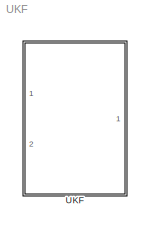
MODEL UKF
KIND model
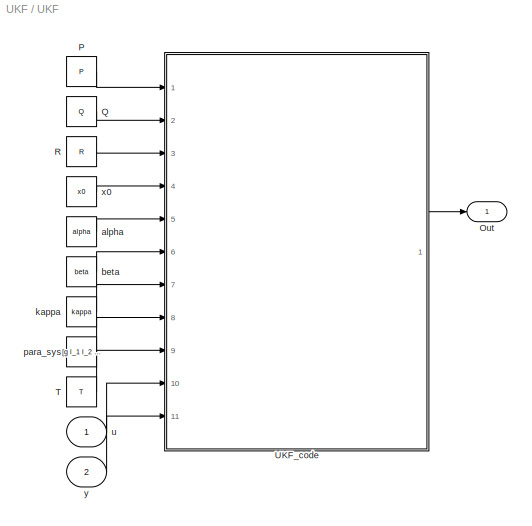
BLOCK [SubSystem] UKF
  FunctionWithSeparateData = off
  MaskHideContents = off
  MinAlgLoopOccurrences = off
  Opaque = off
  Ports = [2, 1]
  PropExecContextOutsideSubsystem = off
  RTWSystemCode = Auto
  RequestExecContextInheritance = off
  SID = 1
BLOCK [Outport] UKF/Out
  IconDisplay = Port number
  SID = 14
BLOCK [Constant] UKF/P
  SID = 3
  Value = P
BLOCK [Constant] UKF/Q
  SID = 4
  Value = Q
BLOCK [Constant] UKF/R
  SID = 5
  Value = R
BLOCK [Constant] UKF/T
  SID = 11
  Value = T
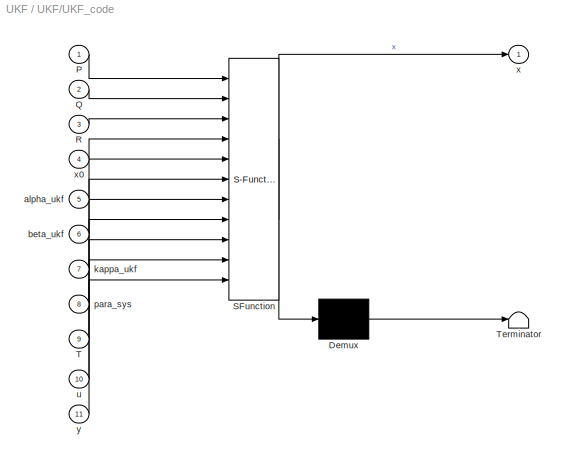
BLOCK [SubSystem] UKF/UKF_code
  ErrorFcn = Stateflow.Translate.translate
  FunctionWithSeparateData = off
  MaskHideContents = off
  MinAlgLoopOccurrences = off
  Opaque = off
  PermitHierarchicalResolution = ExplicitOnly
  Ports = [11, 1]
  PropExecContextOutsideSubsystem = off
  RTWSystemCode = Auto
  RequestExecContextInheritance = off
  SFBlockType = MATLAB Function
  SID = 2
  TreatAsAtomicUnit = on
BLOCK [Demux] UKF/UKF_code/ Demux 
  Outputs = 1
  Ports = [1, 1]
  SID = 2::15
BLOCK [S-Function] UKF/UKF_code/ SFunction 
  EnableBusSupport = off
  FunctionName = sf_sfun
  PortCounts = [11 2]
  Ports = [11, 2]
  SID = 2::14
  Tag = Stateflow S-Function UKF 2
BLOCK [Terminator] UKF/UKF_code/ Terminator 
  SID = 2::17
BLOCK [Inport] UKF/UKF_code/P
  IconDisplay = Port number
  SID = 2::18
BLOCK [Inport] UKF/UKF_code/Q
  IconDisplay = Port number
  Port = 2
  SID = 2::19
BLOCK [Inport] UKF/UKF_code/R
  IconDisplay = Port number
  Port = 3
  SID = 2::20
BLOCK [Inport] UKF/UKF_code/T
  IconDisplay = Port number
  Port = 9
  SID = 2::26
BLOCK [Inport] UKF/UKF_code/alpha_ukf
  IconDisplay = Port number
  Port = 5
  SID = 2::22
BLOCK [Inport] UKF/UKF_code/beta_ukf
  IconDisplay = Port number
  Port = 6
  SID = 2::23
BLOCK [Inport] UKF/UKF_code/kappa_ukf
  IconDisplay = Port number
  Port = 7
  SID = 2::24
BLOCK [Inport] UKF/UKF_code/para_sys
  IconDisplay = Port number
  Port = 8
  SID = 2::25
BLOCK [Inport] UKF/UKF_code/u
  IconDisplay = Port number
  Port = 10
  SID = 2::1
BLOCK [Outport] UKF/UKF_code/x
  IconDisplay = Port number
  SID = 2::28
BLOCK [Inport] UKF/UKF_code/x0
  IconDisplay = Port number
  Port = 4
  SID = 2::21
BLOCK [Inport] UKF/UKF_code/y
  IconDisplay = Port number
  Port = 11
  SID = 2::27
BLOCK [Constant] UKF/alpha
  SID = 7
  Value = alpha
BLOCK [Constant] UKF/beta
  SID = 8
  Value = beta
BLOCK [Constant] UKF/kappa
  SID = 9
  Value = kappa
BLOCK [Constant] UKF/para_sys
  SID = 10
  Value = [g l_1 l_2 m_1 m_2 m_3 d_p1 d_p2]
BLOCK [Inport] UKF/u
  IconDisplay = Port number
  SID = 12
BLOCK [Constant] UKF/x0
  SID = 6
  Value = x0
BLOCK [Inport] UKF/y
  IconDisplay = Port number
  Port = 2
  SID = 13
LINE UKF/P:1 -> UKF/UKF_code:1
LINE UKF/Q:1 -> UKF/UKF_code:2
LINE UKF/R:1 -> UKF/UKF_code:3
LINE UKF/T:1 -> UKF/UKF_code:9
LINE UKF/UKF_code/ Demux :1 -> UKF/UKF_code/ Terminator :1
LINE UKF/UKF_code/ SFunction :1 -> UKF/UKF_code/ Demux :1
LINE UKF/UKF_code/ SFunction :2 -> UKF/UKF_code/x:1
LINE UKF/UKF_code/P:1 -> UKF/UKF_code/ SFunction :1
LINE UKF/UKF_code/Q:1 -> UKF/UKF_code/ SFunction :2
LINE UKF/UKF_code/R:1 -> UKF/UKF_code/ SFunction :3
LINE UKF/UKF_code/T:1 -> UKF/UKF_code/ SFunction :9
LINE UKF/UKF_code/alpha_ukf:1 -> UKF/UKF_code/ SFunction :5
LINE UKF/UKF_code/beta_ukf:1 -> UKF/UKF_code/ SFunction :6
LINE UKF/UKF_code/kappa_ukf:1 -> UKF/UKF_code/ SFunction :7
LINE UKF/UKF_code/para_sys:1 -> UKF/UKF_code/ SFunction :8
LINE UKF/UKF_code/u:1 -> UKF/UKF_code/ SFunction :10
LINE UKF/UKF_code/x0:1 -> UKF/UKF_code/ SFunction :4
LINE UKF/UKF_code/y:1 -> UKF/UKF_code/ SFunction :11
LINE UKF/UKF_code:1 -> UKF/Out:1
LINE UKF/alpha:1 -> UKF/UKF_code:5
LINE UKF/beta:1 -> UKF/UKF_code:6
LINE UKF/kappa:1 -> UKF/UKF_code:7
LINE UKF/para_sys:1 -> UKF/UKF_code:8
LINE UKF/u:1 -> UKF/UKF_code:10
LINE UKF/x0:1 -> UKF/UKF_code:4
LINE UKF/y:1 -> UKF/UKF_code:11
CHART UKF/UKF_code states=1 transitions=1
  STATE_LABEL 'eML_blk_kernel()'
